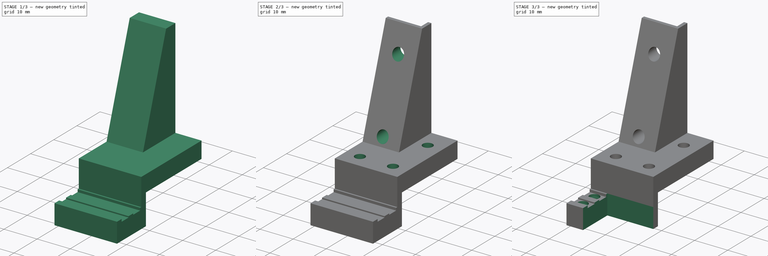
[diagram: build sequence overview — one tinted view per stage of 3, left to right]
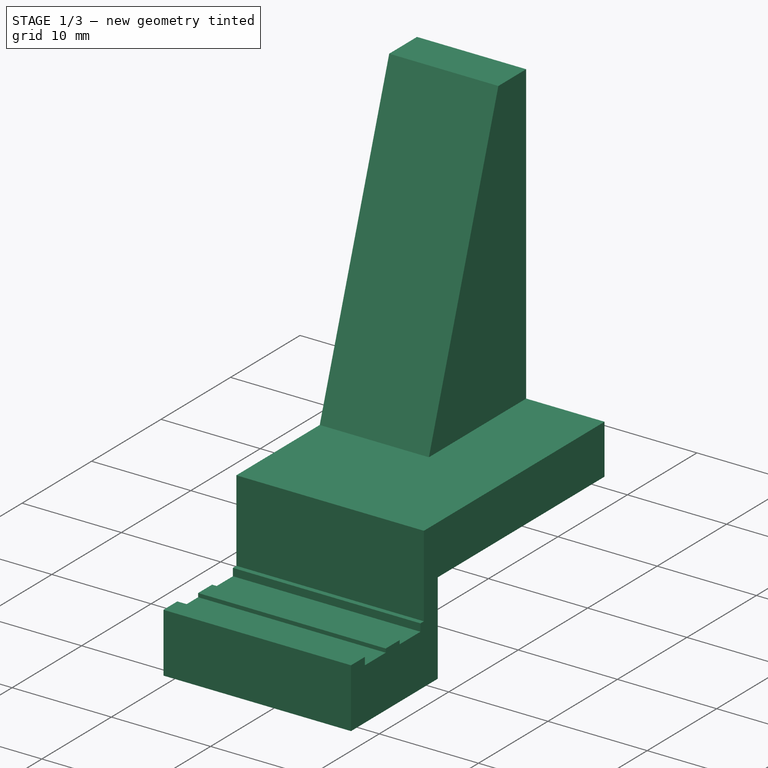
[diagram: stage 1 of 3 — iso view after this stage's code; geometry added in this stage tinted green]
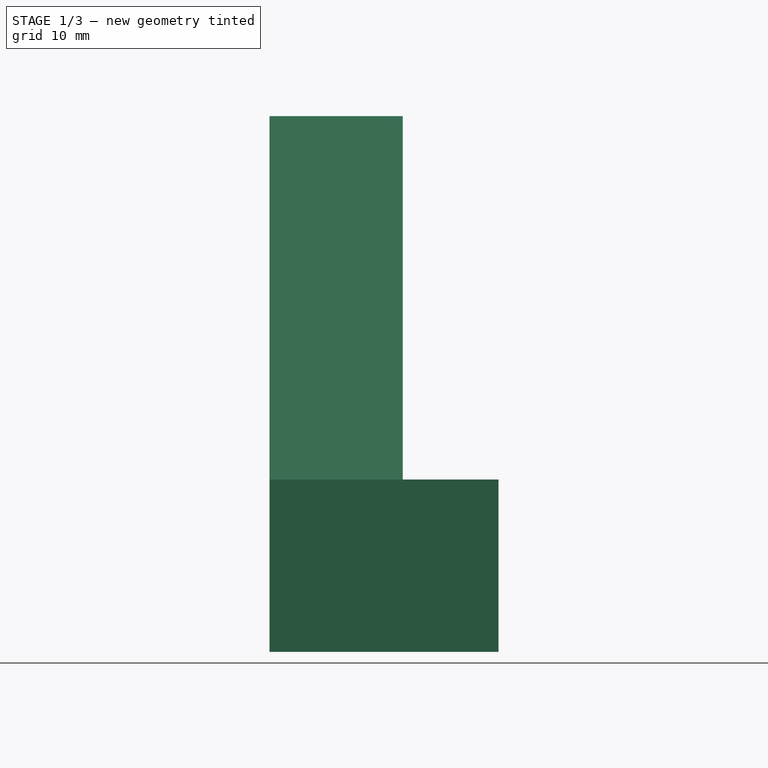
[diagram: stage 1 of 3 — front view after this stage's code; geometry added in this stage tinted green]
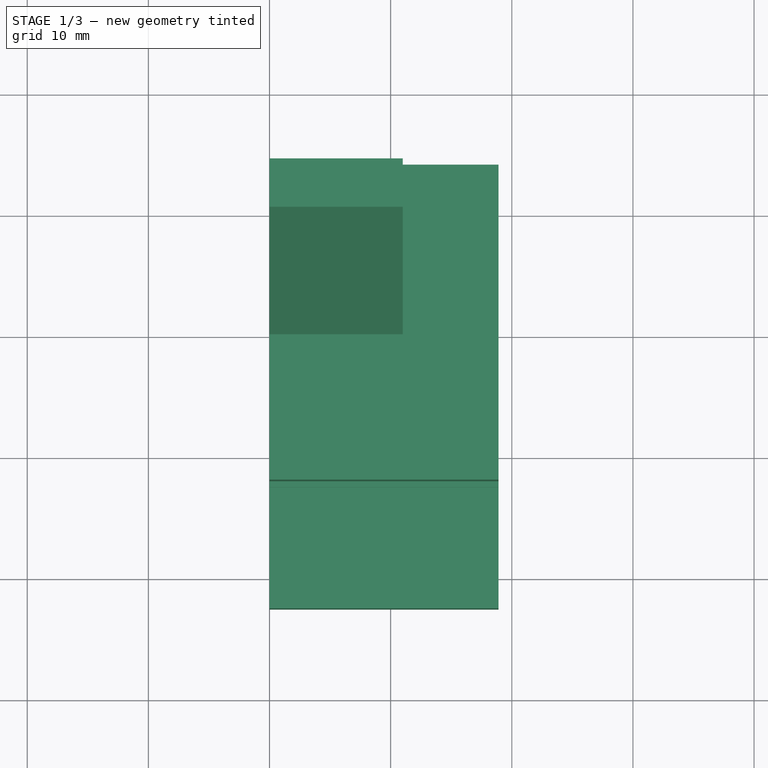
[diagram: stage 1 of 3 — top view after this stage's code; geometry added in this stage tinted green]
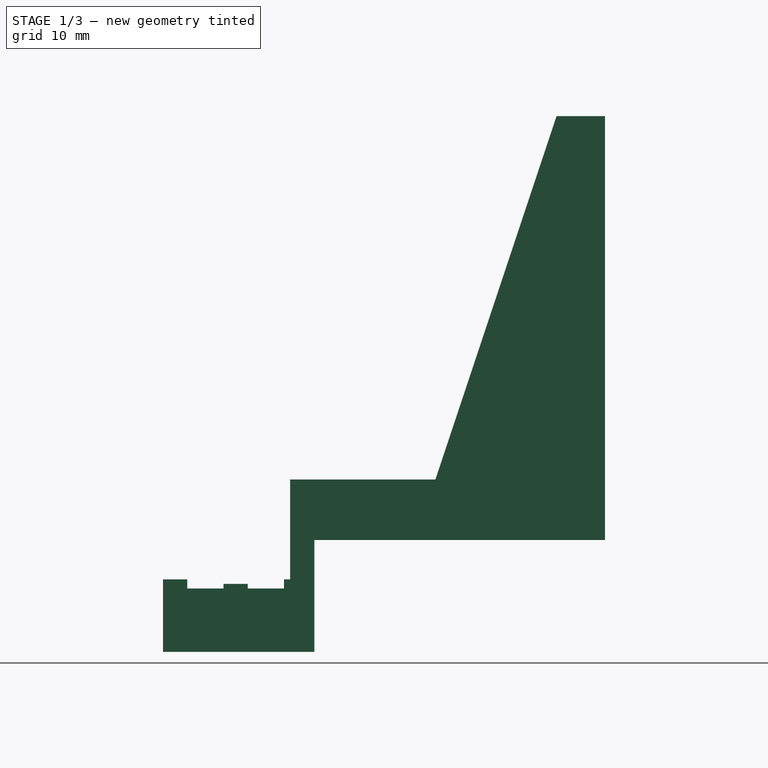
[diagram: stage 1 of 3 — right view after this stage's code; geometry added in this stage tinted green]
FCSTD DOCUMENT  (FreeCAD 0.21R33668 +26 (Git))
Label: NormalConnector
License: All rights reserved
LicenseURL: http://en.wikipedia.org/wiki/All_rights_reserved
objects: Sketcher::SketchObject×7, PartDesign::Pocket×6, PartDesign::SubShapeBinder×4, PartDesign::Pad×1, PartDesign::Body×1
note: 26 computed .brp shape members not serialized (recipe doc carries the construction recipe); baked Part::Feature solids carry a one-line shape summary decoded from their .brp
EXTERNAL_REF file=MG/mgn9c_slide.FCStd obj=Body001
EXTERNAL_REF file=Base.FCStd obj=Sketch001
EXTERNAL_REF file=MG/Datasheet.FCStd obj=Spreadsheet
EXTERNAL_REF file=MG/mgn9c_13.FCStd obj=Body
EXTERNAL_REF file=OmniballConnector/OmniballConnector_7945.FCStd obj=Sketch002
EXTERNAL_REF file=OmniballConnector/OmniballConnector_7945.FCStd obj=Body

FEATURE [PartDesign::SubShapeBinder] Binder  label="Slide"
  BindCopyOnChange = 0
  BindMode = 0
  ClaimChildren = false
  Context = -> Body [Binder.]
  Fuse = false
  MakeFace = true
  OffsetFill = false
  OffsetIntersection = false
  OffsetJoinType = 0
  OffsetOpenResult = false
  PartialLoad = false
  Placement = pos=(-5,0,-2) rot=(0,0,1;0rad)
  Relative = true
  Support = -> [<external MG/mgn9c_slide.FCStd>#Body001]
  _Version = 2
FEATURE [PartDesign::SubShapeBinder] Binder001  label="Rail"
  BindCopyOnChange = 0
  BindMode = 0
  ClaimChildren = false
  Context = -> Body [Binder001.]
  Fuse = false
  MakeFace = true
  OffsetFill = false
  OffsetIntersection = false
  OffsetJoinType = 0
  OffsetOpenResult = false
  PartialLoad = false
  Placement = pos=(-5,5.5,-2) rot=(0,0,1;0rad)
  Relative = true
  Support = -> [<external MG/mgn9c_13.FCStd>#Body]
  _Version = 2
FEATURE [Sketcher::SketchObject] Sketch
  ExternalGeometry = -> [Binder,Binder001]
  FullyConstrained = true
  MapMode = 5
  Placement = pos=(0,0,0) rot=(0.57735,0.57735,0.57735;2.0944rad)
  Support = -> [YZ_Plane]
  expr: Constraints[108] = <<Datasheet>>#<<mgn9c>>.Dim_H1
  expr: Constraints[11] = 0.102 in
  expr: Constraints[20] = 0.118 in
  expr: Constraints[23] = 0.03 in
  expr: Constraints[24] = 0.236 in
  expr: Constraints[25] = 0.091 in
  expr: Constraints[27] = 0.266 in
  expr: Constraints[88] = <<Datasheet>>#<<mgn9c>>.Dim_E * 2 + <<Datasheet>>#<<mgn9c>>.Dim_P
  expr: Constraints[98] = 2 mm + <<Base>>#<<Sketch001>>.Constraints.PCB_Thickness
  sketch-geometry (44):
    g0: LineSegment StartX=2.9e-15 StartY=6 StartZ=0 EndX=2.9e-15 EndY=-4 EndZ=0
    g1: LineSegment StartX=14.5 StartY=-2 StartZ=0 EndX=-25.5 EndY=-2 EndZ=0
    g2: LineSegment StartX=-5.294 StartY=1.9944 StartZ=0 EndX=-2.7032 EndY=1.9944 EndZ=0
    g3: LineSegment StartX=-2.7032 StartY=1.9944 StartZ=0 EndX=-2.7032 EndY=-3.238 EndZ=0
    g4: LineSegment StartX=-2.7032 StartY=-3.238 StartZ=0 EndX=-5.294 EndY=-3.238 EndZ=0
    g5: LineSegment StartX=-5.294 StartY=-3.238 StartZ=0 EndX=-5.294 EndY=1.9944 EndZ=0
    g6: LineSegment StartX=-5.4972 StartY=2.7564 StartZ=0 EndX=-2.5 EndY=2.7564 EndZ=0
    g7: LineSegment StartX=-2.5 StartY=2.7564 StartZ=0 EndX=-2.5 EndY=1.9944 EndZ=0
    g8: LineSegment StartX=-2.5 StartY=1.9944 StartZ=0 EndX=-5.4972 EndY=1.9944 EndZ=0
    g9: LineSegment StartX=-5.4972 StartY=1.9944 StartZ=0 EndX=-5.4972 EndY=2.7564 EndZ=0
    g10: GeomPoint X=-3.9986 Y=1.9944 Z=0
    g11: Circle CenterX=-3.9986 CenterY=-2.8443 CenterZ=0 NormalX=0 NormalY=0 NormalZ=1 AngleXU=0 Radius=1.1557
    g12: GeomPoint X=-3.9986 Y=-4 Z=0
    g13: LineSegment StartX=-10.2912 StartY=1.9944 StartZ=0 EndX=-7.7004 EndY=1.9944 EndZ=0
    g14: LineSegment StartX=-7.7004 StartY=1.9944 StartZ=0 EndX=-7.7004 EndY=-3.238 EndZ=0
    g15: LineSegment StartX=-7.7004 StartY=-3.238 StartZ=0 EndX=-10.2912 EndY=-3.238 EndZ=0
    g16: LineSegment StartX=-10.2912 StartY=-3.238 StartZ=0 EndX=-10.2912 EndY=1.9944 EndZ=0
    g17: LineSegment StartX=-10.4944 StartY=2.7564 StartZ=0 EndX=-7.4972 EndY=2.7564 EndZ=0
    g18: LineSegment StartX=-7.4972 StartY=2.7564 StartZ=0 EndX=-7.4972 EndY=1.9944 EndZ=0
    g19: LineSegment StartX=-7.4972 StartY=1.9944 StartZ=0 EndX=-10.4944 EndY=1.9944 EndZ=0
    g20: LineSegment StartX=-10.4944 StartY=1.9944 StartZ=0 EndX=-10.4944 EndY=2.7564 EndZ=0
    g21: GeomPoint X=-8.9958 Y=1.9944 Z=0
    g22: Circle CenterX=-8.9958 CenterY=-2.8443 CenterZ=0 NormalX=0 NormalY=0 NormalZ=1 AngleXU=0 Radius=1.1557
    g23: GeomPoint X=-8.9958 Y=-4 Z=0
    g24: LineSegment StartX=-2.5 StartY=2.7564 StartZ=0 EndX=-2.5 EndY=1.9944 EndZ=0
    g25: LineSegment StartX=-2.5 StartY=1.9944 StartZ=0 EndX=-5.4972 EndY=1.9944 EndZ=0
    g26: LineSegment StartX=-5.4972 StartY=1.9944 StartZ=0 EndX=-5.4972 EndY=2.3754 EndZ=0
    g27: LineSegment StartX=-5.4972 StartY=2.3754 StartZ=0 EndX=-7.4972 EndY=2.3754 EndZ=0
    g28: LineSegment StartX=-7.4972 StartY=2.3754 StartZ=0 EndX=-7.4972 EndY=1.9944 EndZ=0
    g29: LineSegment StartX=-7.4972 StartY=1.9944 StartZ=0 EndX=-10.4944 EndY=1.9944 EndZ=0
    g30: LineSegment StartX=-10.4944 StartY=1.9944 StartZ=0 EndX=-10.4944 EndY=2.7564 EndZ=0
    g31: LineSegment StartX=-10.4944 StartY=2.7564 StartZ=0 EndX=-12.4944 EndY=2.7564 EndZ=0
    g32: LineSegment StartX=-12.4944 StartY=2.7564 StartZ=0 EndX=-12.4944 EndY=-4 EndZ=0
    g33: LineSegment StartX=-2.5 StartY=2.7564 StartZ=0 EndX=-2 EndY=2.7564 EndZ=0
    g34: LineSegment StartX=-2 StartY=2.7564 StartZ=0 EndX=-2 EndY=11 EndZ=0
    g35: LineSegment StartX=2.9e-15 StartY=-4 StartZ=0 EndX=-12.4944 EndY=-4 EndZ=0
    g36: LineSegment StartX=-2 StartY=11 StartZ=0 EndX=10 EndY=11 EndZ=0
    g37: LineSegment StartX=24 StartY=6 StartZ=0 EndX=24 EndY=41 EndZ=0
    g38: LineSegment StartX=24 StartY=41 StartZ=0 EndX=20 EndY=41 EndZ=0
    g39: LineSegment StartX=20 StartY=41 StartZ=0 EndX=10 EndY=11 EndZ=0
    g40: LineSegment StartX=2.9e-15 StartY=6 StartZ=0 EndX=24 EndY=6 EndZ=0
    g41: LineSegment StartX=-12.4944 StartY=2.7564 StartZ=0 EndX=-12.4944 EndY=-3.238 EndZ=0
    g42: LineSegment StartX=-12.4944 StartY=-3.238 StartZ=0 EndX=3.6e-15 EndY=-3.238 EndZ=0
    g43: LineSegment StartX=3.6e-15 StartY=-3.238 StartZ=0 EndX=2.9e-15 EndY=6 EndZ=0
  constraints (118):
    c: Coincident(g1,g-7)
    c: Horizontal(g1)
    c: DistanceX(g1,g1) = 40
    c: Coincident(g2,g3)
    c: Coincident(g3,g4)
    c: Coincident(g4,g5)
    c: Coincident(g5,g2)
    c: Horizontal(g2)
    c: Horizontal(g4)
    c: Vertical(g3)
    c: Vertical(g5)
    c: DistanceX(g2,g2) = 2.5908
    c: Coincident(g6,g7)
    c: Coincident(g7,g8)
    c: Coincident(g8,g9)
    c: Coincident(g9,g6)
    c: Horizontal(g6)
    c: Horizontal(g8)
    c: Vertical(g7)
    c: Vertical(g9)
    c: DistanceX(g6,g6) = 2.9972
    c: Symmetric(g8,g7,g10)
    c: Symmetric(g2,g2,g10)
    c: DistanceY(g7,g7) = 0.762
    c: DistanceY(g3,g6) = 5.9944
    c: Diameter(g11) = 2.3114
    c: DistanceX(g10,g12) = 0
    c: DistanceY(g12,g6) = 6.7564
    c: DistanceX(g11,g12) = 0
    c: Coincident(g13,g14)
    c: Coincident(g14,g15)
    c: Coincident(g15,g16)
    c: Coincident(g16,g13)
    c: Horizontal(g13)
    c: Horizontal(g15)
    c: Vertical(g14)
    c: Vertical(g16)
    c: Equal(g2,g13) = 2.5908
    c: Coincident(g17,g18)
    c: Coincident(g18,g19)
    c: Coincident(g19,g20)
    c: Coincident(g20,g17)
    c: Horizontal(g17)
    c: Horizontal(g19)
    c: Vertical(g18)
    c: Vertical(g20)
    c: Equal(g6,g17) = 2.9972
    c: Symmetric(g19,g18,g21)
    c: Symmetric(g13,g13,g21)
    c: Equal(g7,g18) = 0.762
    c: DistanceY(g14,g17) = 5.9944
    c: Equal(g11,g22) = 2.3114
    c: DistanceX(g21,g23) = 0
    c: DistanceY(g23,g17) = 6.7564
    c: DistanceX(g22,g23) = 0
    c: Coincident(g24,g6)
    c: Coincident(g24,g7)
    c: Coincident(g25,g24)
    c: Coincident(g25,g8)
    c: Coincident(g26,g25)
    c: Coincident(g27,g26)
    c: PointOnObject(g27,g18)
    c: Coincident(g28,g27)
    c: Coincident(g28,g18)
    c: Coincident(g29,g28)
    c: Coincident(g29,g19)
    c: Horizontal(g27)
    c: Symmetric(g6,g25,g26)
    c: Coincident(g30,g29)
    c: Coincident(g30,g17)
    c: Coincident(g31,g17)
    c: Horizontal(g31)
    c: DistanceX(g31,g31) = 2
    c: Coincident(g32,g31)
    c: Vertical(g32)
    c: DistanceX(g27,g27) = 2
    c: Coincident(g33,g24)
    c: DistanceX(g33,g33) = 0.5
    c: Horizontal(g33)
    c: Coincident(g34,g33)
    c: Vertical(g34)
    c: DistanceX(g33,g-5) = 2
    c: Coincident(g35,g32)
    c: Horizontal(g35)
    c: DistanceY(g0,g34) = 5
    c: Coincident(g36,g34)
    c: Horizontal(g36)
    c: Vertical(g37)
    c: DistanceY(g37,g37) = 35
    c: Coincident(g38,g37)
    c: Horizontal(g38)
    c: Coincident(g39,g38)
    c: Coincident(g36,g39)
    c: DistanceX(g36,g36) = 12
    c: Coincident(g40,g37)
    c: Horizontal(g40)
    c: Coincident(g0,g40)
    c: Coincident(g0,g-4)
    c: DistanceX(g-4,g37) = 4
    c: DistanceX(g35,g35) = 12.4944  'PCB_Edge_Distance_From_Slide_Side'
    c: DistanceX(g12,g0) = 3.9986  'Connector_Close_Distance'
    c: DistanceX(g23,g0) = 8.9958  'Connector_Far_Distance'
    c: PointOnObject(g38,g-6)
    c: Coincident(g0,g35)
    c: Vertical(g0)
    c: PointOnObject(g12,g35)
    c: PointOnObject(g12,g11)
    c: PointOnObject(g23,g35)
    c: DistanceY(g0,g-5) = 2
    c: PointOnObject(g23,g22)
    c: Coincident(g41,g31)
    c: Coincident(g42,g41)
    c: PointOnObject(g42,g0)
    c: Horizontal(g42)
    c: Coincident(g43,g42)
    c: Coincident(g43,g40)
    c: PointOnObject(g3,g42)
    c: PointOnObject(g41,g32)
FEATURE [PartDesign::Pad] Pad
  Direction = (1,-2e-16,3e-16)
  Length = 18.9
  Length2 = 10
  Placement = pos=(0,0,0) rot=(0.57735,0.57735,0.57735;2.0944rad)
  Profile = -> Sketch
  ReferenceAxis = -> Sketch [N_Axis]
  Type = 0
  expr: Length = <<Datasheet>>#<<mgn9c>>.Dim_L1
FEATURE [Sketcher::SketchObject] Sketch001
  ExternalGeometry = -> [Pad]
  FullyConstrained = true
  MapMode = 5
  Placement = pos=(-9e-16,-2,4e-16) rot=(-0.57735,-0.57735,0.57735;4.18879rad)
  Support = -> [Pad]
  expr: Constraints[10] = <<Datasheet>>#<<mgn9c>>.Dim_Wr + 2 mm
  sketch-geometry (4):
    g0: LineSegment StartX=-41 StartY=18.9 StartZ=0 EndX=-11 EndY=18.9 EndZ=0
    g1: LineSegment StartX=-11 StartY=18.9 StartZ=0 EndX=-11 EndY=11 EndZ=0
    g2: LineSegment StartX=-11 StartY=11 StartZ=0 EndX=-41 EndY=11 EndZ=0
    g3: LineSegment StartX=-41 StartY=11 StartZ=0 EndX=-41 EndY=18.9 EndZ=0
  constraints (11):
    c: Coincident(g0,g1)
    c: Coincident(g1,g2)
    c: Coincident(g2,g3)
    c: Coincident(g3,g0)
    c: Horizontal(g0)
    c: Horizontal(g2)
    c: Vertical(g1)
    c: Vertical(g3)
    c: Coincident(g0,g-4)
    c: PointOnObject(g1,g-3)
    c: DistanceY(g-3,g1) = 11
FEATURE [PartDesign::Pocket] Pocket
  BaseFeature = -> Pad
  Direction = (4e-16,1,-2e-16)
  Length = 5
  Length2 = 5
  Placement = pos=(0,0,0) rot=(0.57735,0.57735,0.57735;2.0944rad)
  Profile = -> Sketch001
  ReferenceAxis = -> Sketch001 [N_Axis]
  Type = 1
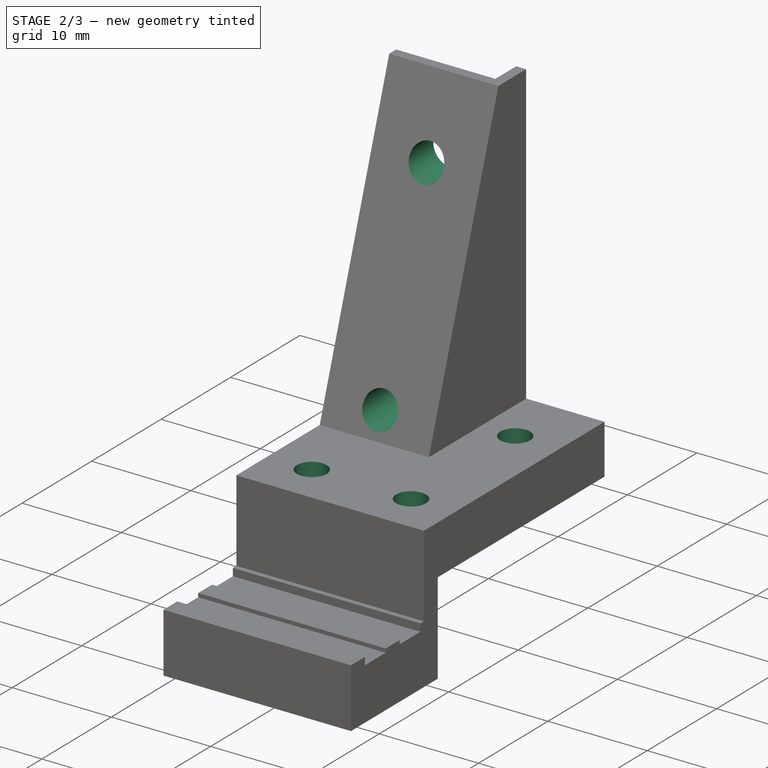
[diagram: stage 2 of 3 — iso view after this stage's code; geometry added in this stage tinted green]
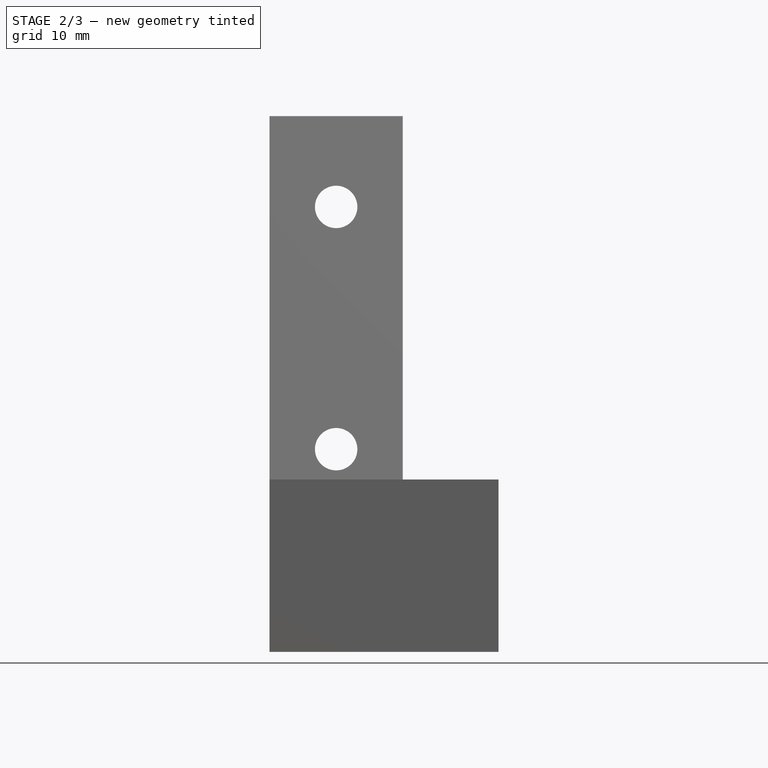
[diagram: stage 2 of 3 — front view after this stage's code; geometry added in this stage tinted green]
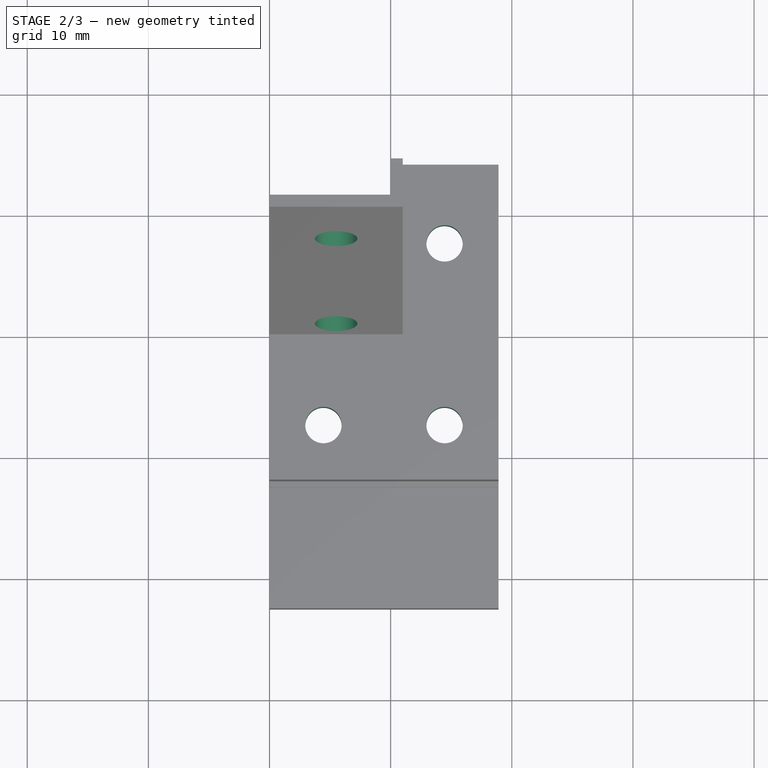
[diagram: stage 2 of 3 — top view after this stage's code; geometry added in this stage tinted green]
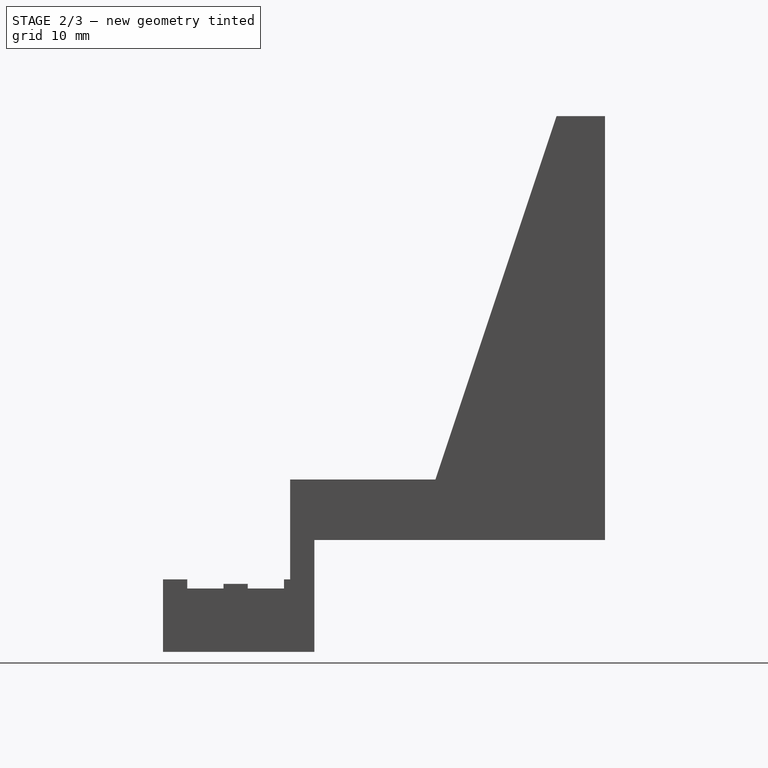
[diagram: stage 2 of 3 — right view after this stage's code; geometry added in this stage tinted green]
FEATURE [Sketcher::SketchObject] Sketch002
  ExternalGeometry = -> [Pocket]
  FullyConstrained = true
  MapMode = 5
  Placement = pos=(-1.15e-14,1.8e-14,41) rot=(0,0,-1;1.5708rad)
  Support = -> [Pocket]
  expr: Constraints[5] = <<Datasheet>>#<<mgn9c>>.Dim_H1 / 2 + <<Base>>#<<Sketch001>>.Constraints.PCB_Thickness
  expr: Constraints[7] = <<Datasheet>>#<<mgn9c>>.Dim_Wr
  sketch-geometry (9):
    g0: LineSegment StartX=-21 StartY=10 StartZ=0 EndX=-21 EndY=1 EndZ=0
    g1: LineSegment StartX=-21 StartY=1 StartZ=0 EndX=-24 EndY=1 EndZ=0
    g2: LineSegment StartX=-24 StartY=1 StartZ=0 EndX=-24 EndY=10 EndZ=0
    g3: GeomPoint X=-24 Y=5.5 Z=0
    g4: LineSegment StartX=-21 StartY=10 StartZ=0 EndX=-24 EndY=10 EndZ=0
    g5: LineSegment StartX=-24 StartY=1 StartZ=0 EndX=-21 EndY=1 EndZ=0
    g6: LineSegment StartX=-21 StartY=1 StartZ=0 EndX=-21 EndY=0 EndZ=0
    g7: LineSegment StartX=-21 StartY=0 StartZ=0 EndX=-24 EndY=0 EndZ=0
    g8: LineSegment StartX=-24 StartY=0 StartZ=0 EndX=-24 EndY=1 EndZ=0
  constraints (22):
    c: Coincident(g0,g1)
    c: Coincident(g1,g2)
    c: Horizontal(g1)
    c: Vertical(g0)
    c: Vertical(g2)
    c: DistanceX(g1,g1) = 3
    c: Symmetric(g2,g1,g3)
    c: DistanceY(g0,g0) = 9
    c: Horizontal(g4)
    c: Coincident(g5,g6)
    c: Coincident(g6,g7)
    c: Coincident(g7,g8)
    c: Coincident(g8,g5)
    c: Horizontal(g7)
    c: Vertical(g6)
    c: Vertical(g8)
    c: Coincident(g5,g1)
    c: PointOnObject(g6,g-1)
    c: Coincident(g0,g5)
    c: Coincident(g0,g4)
    c: Coincident(g2,g4)
    c: Symmetric(g-3,g7,g3)
FEATURE [PartDesign::Pocket] Pocket001
  BaseFeature = -> Pocket
  Direction = (7e-16,-7e-16,-1)
  Length = 5
  Length2 = 5
  Placement = pos=(0,0,0) rot=(0.57735,0.57735,0.57735;2.0944rad)
  Profile = -> Sketch002
  ReferenceAxis = -> Sketch002 [N_Axis]
  Type = 1
FEATURE [Sketcher::SketchObject] Sketch003
  ExternalGeometry = -> [Pocket001]
  FullyConstrained = true
  MapMode = 5
  Placement = pos=(9.2e-15,21,-1.41e-14) rot=(0.57735,0.57735,0.57735;4.18879rad)
  Support = -> [Pocket001]
  expr: Constraints[0] = <<Datasheet>>#<<mgn9c>>.Dim_d
  expr: Constraints[1] = <<Datasheet>>#<<mgn9c>>.Dim_d
  expr: Constraints[5] = <<Datasheet>>#<<mgn9c>>.Dim_E
  expr: Constraints[6] = <<Datasheet>>#<<mgn9c>>.Dim_P
  sketch-geometry (3):
    g0: Circle CenterX=13.5 CenterY=5.5 CenterZ=0 NormalX=0 NormalY=0 NormalZ=1 AngleXU=0 Radius=1.75
    g1: Circle CenterX=33.5 CenterY=5.5 CenterZ=0 NormalX=0 NormalY=0 NormalZ=1 AngleXU=0 Radius=1.75
    g2: LineSegment StartX=6 StartY=5.5 StartZ=0 EndX=33.5 EndY=5.5 EndZ=0
  constraints (8):
    c: Diameter(g1) = 3.5
    c: Diameter(g0) = 3.5
    c: Coincident(g2,g1)
    c: Horizontal(g2)
    c: PointOnObject(g0,g2)
    c: DistanceX(g2,g0) = 7.5
    c: DistanceX(g0,g1) = 20
    c: Symmetric(g-4,g-4,g2)
FEATURE [PartDesign::Pocket] Pocket002
  BaseFeature = -> Pocket001
  Direction = (-4e-16,-1,6e-16)
  Length = 5
  Length2 = 5
  Placement = pos=(0,0,0) rot=(0.57735,0.57735,0.57735;2.0944rad)
  Profile = -> Sketch003
  ReferenceAxis = -> Sketch003 [N_Axis]
  Type = 1
FEATURE [Sketcher::SketchObject] Sketch005
  ExternalGeometry = -> [Binder]
  FullyConstrained = true
  MapMode = 5
  Placement = pos=(-1e-14,6e-15,6) rot=(0.707107,0.707107,0;3.14159rad)
  sketch-geometry (3):
    g0: Circle CenterX=2.5 CenterY=14.45 CenterZ=0 NormalX=0 NormalY=0 NormalZ=1 AngleXU=0 Radius=1.5
    g1: Circle CenterX=17.5 CenterY=14.45 CenterZ=0 NormalX=0 NormalY=0 NormalZ=1 AngleXU=0 Radius=1.5
    g2: Circle CenterX=2.5 CenterY=4.45 CenterZ=0 NormalX=0 NormalY=0 NormalZ=1 AngleXU=0 Radius=1.5
  constraints (6):
    c: Coincident(g0,g-3)
    c: Tangent(g0,g-3)
    c: Coincident(g1,g-4)
    c: Tangent(g1,g-4)
    c: Coincident(g2,g-5)
    c: Tangent(g2,g-5)
FEATURE [PartDesign::Pocket] Pocket004
  BaseFeature = -> Pocket002
  Direction = (-1.7e-15,1e-15,1)
  Length = 5
  Length2 = 5
  Placement = pos=(0,0,0) rot=(0.57735,0.57735,0.57735;2.0944rad)
  Profile = -> Sketch005
  ReferenceAxis = -> Sketch005 [N_Axis]
  Type = 1
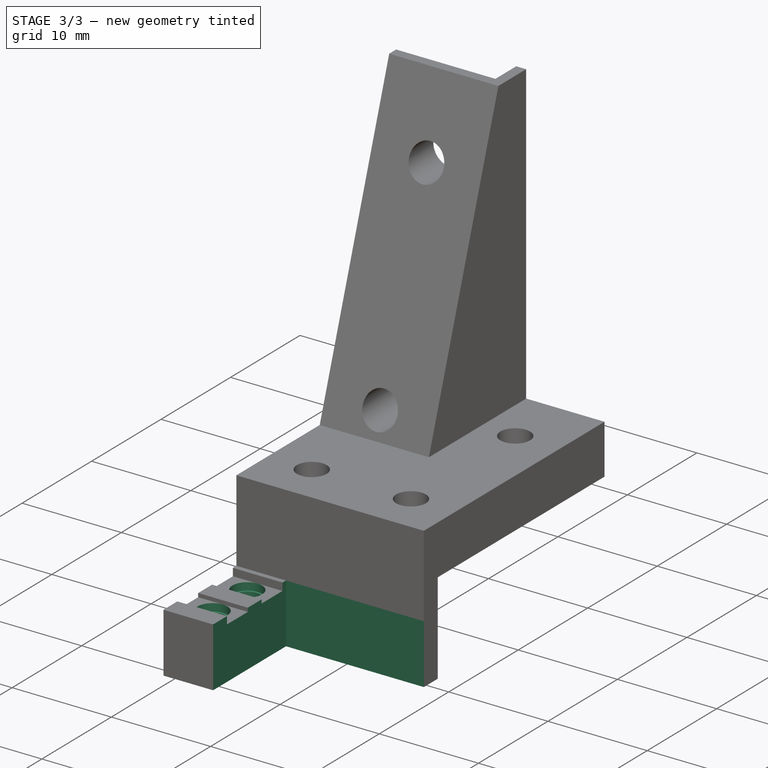
[diagram: stage 3 of 3 — iso view after this stage's code; geometry added in this stage tinted green]
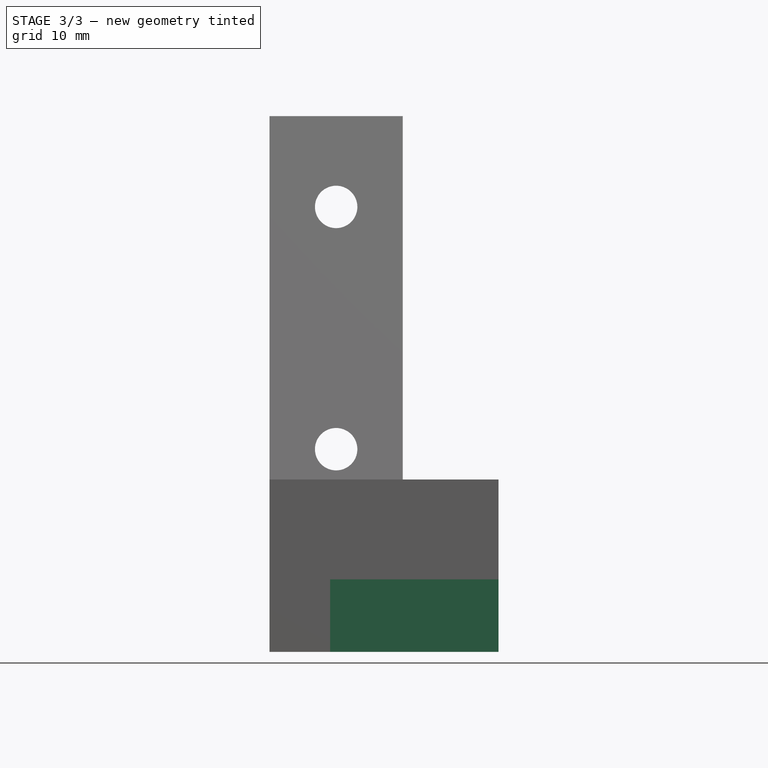
[diagram: stage 3 of 3 — front view after this stage's code; geometry added in this stage tinted green]
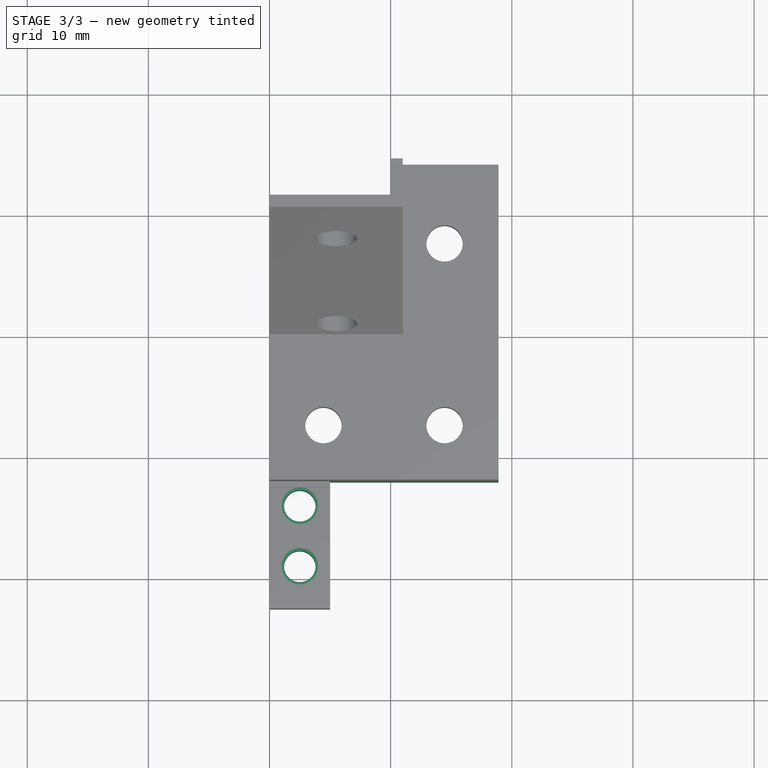
[diagram: stage 3 of 3 — top view after this stage's code; geometry added in this stage tinted green]
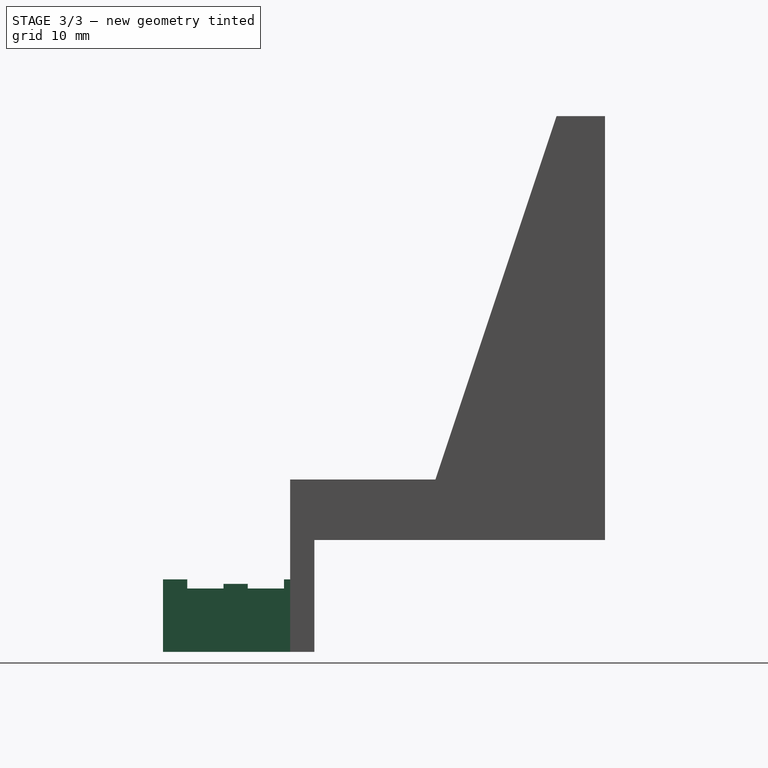
[diagram: stage 3 of 3 — right view after this stage's code; geometry added in this stage tinted green]
FEATURE [Sketcher::SketchObject] Sketch007
  ExternalGeometry = -> [Pocket004]
  FullyConstrained = true
  MapMode = 5
  Placement = pos=(-8e-16,1.2e-15,2.7564) rot=(0,0,-1;1.5708rad)
  Support = -> [Pocket004]
  expr: .Constraints.Rad = <<OmniballConnector_7945>>#<<Sketch002>>.Constraints.Smallest_Radius
  expr: Constraints[8] = .Constraints.Rad
  sketch-geometry (10):
    g0: LineSegment StartX=12.4944 StartY=18.9 StartZ=0 EndX=2 EndY=18.9 EndZ=0
    g1: LineSegment StartX=2 StartY=18.9 StartZ=0 EndX=2 EndY=5 EndZ=0
    g2: LineSegment StartX=2 StartY=5 StartZ=0 EndX=12.4944 EndY=5 EndZ=0
    g3: LineSegment StartX=12.4944 StartY=5 StartZ=0 EndX=12.4944 EndY=18.9 EndZ=0
    g4: Circle CenterX=8.9958 CenterY=2.5 CenterZ=0 NormalX=0 NormalY=0 NormalZ=1 AngleXU=0 Radius=1.2954
    g5: Circle CenterX=3.9986 CenterY=2.5 CenterZ=0 NormalX=0 NormalY=0 NormalZ=1 AngleXU=0 Radius=1.2954
    g6: GeomPoint X=3.9986 Y=5 Z=0
    g7: GeomPoint X=3.9986 Y=-4e-16 Z=0
    g8: GeomPoint X=7.4972 Y=2.5 Z=0
    g9: GeomPoint X=10.4944 Y=2.5 Z=0
  constraints (21):
    c: Coincident(g0,g1)
    c: Coincident(g1,g2)
    c: Coincident(g2,g3)
    c: Coincident(g3,g0)
    c: Horizontal(g2)
    c: Vertical(g1)
    c: Vertical(g3)
    c: Diameter(g4) = 2.5908  'Rad'
    c: Diameter(g5) = 2.5908
    c: Horizontal(g4,g5)
    c: Coincident(g0,g-5)
    c: PointOnObject(g6,g2)
    c: Symmetric(g6,g7,g5)
    c: Symmetric(g-6,g-7,g7)
    c: Vertical(g5,g7)
    c: DistanceY(g-4,g1) = 5
    c: PointOnObject(g8,g-8)
    c: PointOnObject(g9,g-3)
    c: Symmetric(g9,g8,g4)
    c: Horizontal(g4,g8)
    c: Coincident(g0,g-4)
FEATURE [PartDesign::Pocket] Pocket005
  BaseFeature = -> Pocket004
  Direction = (1.7e-15,-1e-15,-1)
  Length = 5
  Length2 = 5
  Placement = pos=(0,0,0) rot=(0.57735,0.57735,0.57735;2.0944rad)
  Profile = -> Sketch007
  ReferenceAxis = -> Sketch007 [N_Axis]
  Type = 1
FEATURE [PartDesign::SubShapeBinder] Binder002  label="OmniballConnector"
  BindCopyOnChange = 0
  BindMode = 0
  ClaimChildren = false
  Context = -> Body [Binder002.]
  Fuse = false
  MakeFace = true
  OffsetFill = false
  OffsetIntersection = false
  OffsetJoinType = 0
  OffsetOpenResult = false
  PartialLoad = false
  Placement = pos=(2.5,-4,2) rot=(0,1,0;3.14159rad)
  Relative = true
  Support = -> [<external OmniballConnector/OmniballConnector_7945.FCStd>#Body]
  _Version = 2
FEATURE [Sketcher::SketchObject] Sketch008
  ExternalGeometry = -> [Pocket005]
  FullyConstrained = true
  MapMode = 5
  Placement = pos=(-6e-16,9e-16,1.9944) rot=(0,0,-1;1.5708rad)
  Support = -> [Pocket005]
  sketch-geometry (2):
    g0: Circle CenterX=8.9958 CenterY=2.5 CenterZ=0 NormalX=0 NormalY=0 NormalZ=1 AngleXU=0 Radius=1.4986
    g1: Circle CenterX=3.9986 CenterY=2.5 CenterZ=0 NormalX=0 NormalY=0 NormalZ=1 AngleXU=0 Radius=1.4986
  constraints (4):
    c: Coincident(g0,g-3)
    c: Coincident(g1,g-5)
    c: Tangent(g1,g-7)
    c: Tangent(g0,g-4)
FEATURE [PartDesign::SubShapeBinder] Binder003  label="OmniballConnector2"
  BindCopyOnChange = 0
  BindMode = 0
  ClaimChildren = false
  Context = -> Body [Binder003.]
  Fuse = false
  MakeFace = true
  OffsetFill = false
  OffsetIntersection = false
  OffsetJoinType = 0
  OffsetOpenResult = false
  PartialLoad = false
  Placement = pos=(2.5,-9,2) rot=(0,1,0;3.14159rad)
  Relative = true
  Support = -> [<external OmniballConnector/OmniballConnector_7945.FCStd>#Body]
  _Version = 2
FEATURE [PartDesign::Pocket] Pocket006
  BaseFeature = -> Pocket005
  Direction = (3e-16,-4e-16,-1)
  Length = 0.762
  Length2 = 5
  Placement = pos=(0,0,0) rot=(0.57735,0.57735,0.57735;2.0944rad)
  Profile = -> Sketch008
  ReferenceAxis = -> Sketch008 [N_Axis]
  Type = 0
  expr: Length = 0.03 in
FEATURE [PartDesign::Body] Body  label="NormalConnector"
  Group = -> [Binder,Sketch,Binder001,Pad,Sketch001,Pocket,Sketch002,Pocket001,Sketch003,Pocket002,Sketch005,Pocket004,Sketch007,Pocket005,Binder002,Sketch008,Binder003,Pocket006]
  Origin = -> Origin
  Tip = -> Pocket006
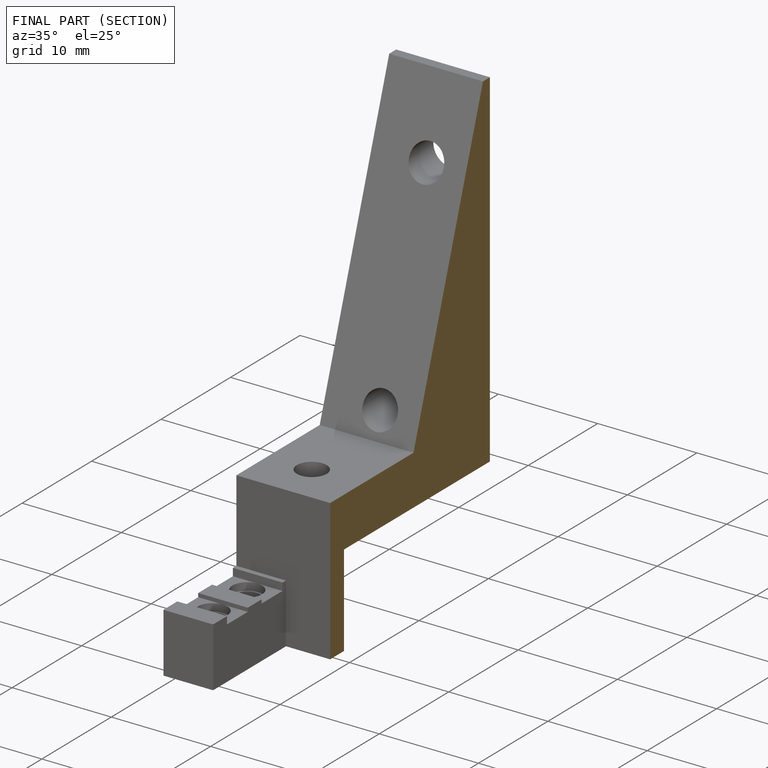
[diagram: finished part — half-section view (interior)]
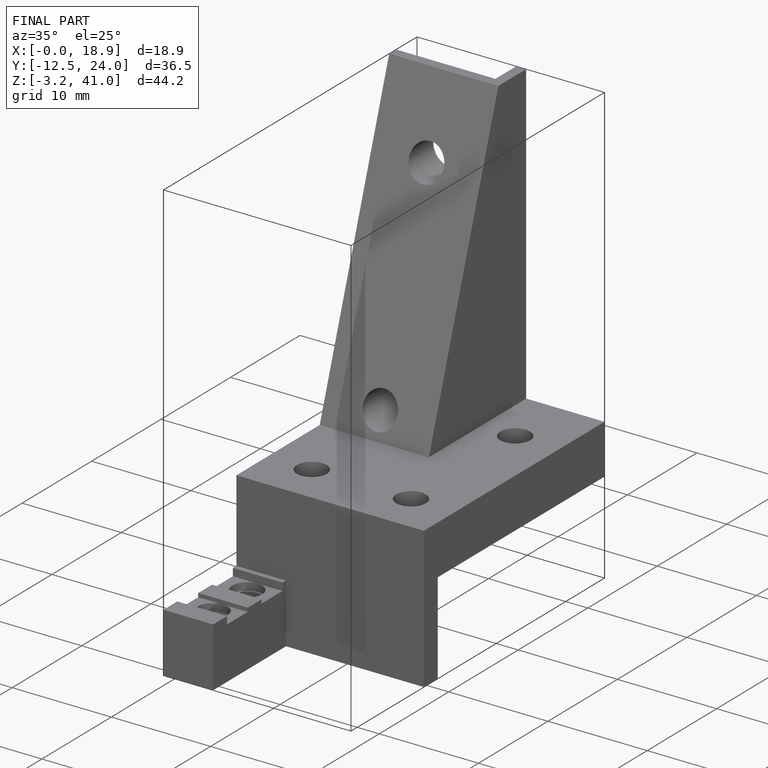
[diagram: finished part — iso view with bounding-box wireframe]
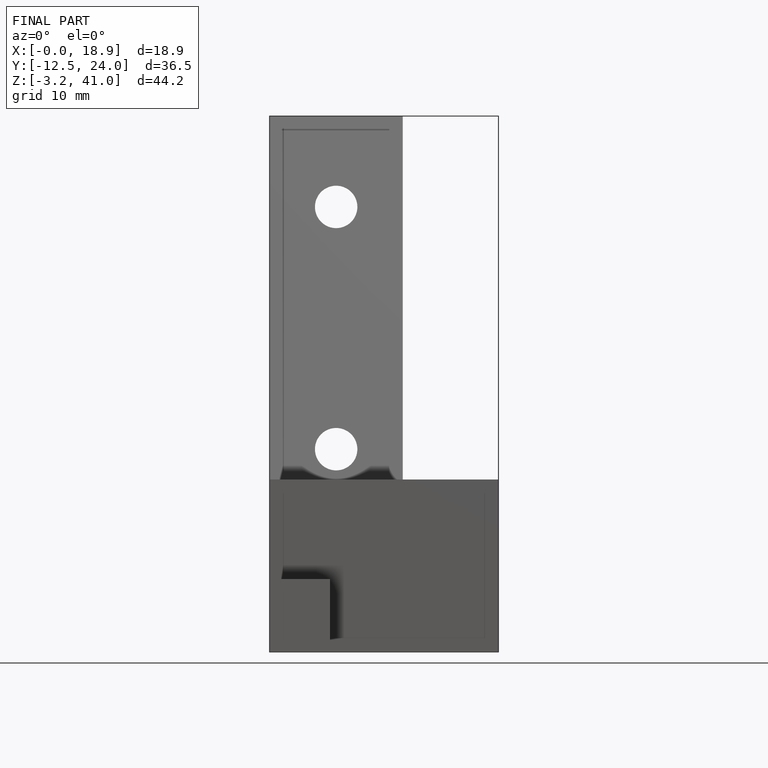
[diagram: finished part — front view with bounding-box wireframe]
